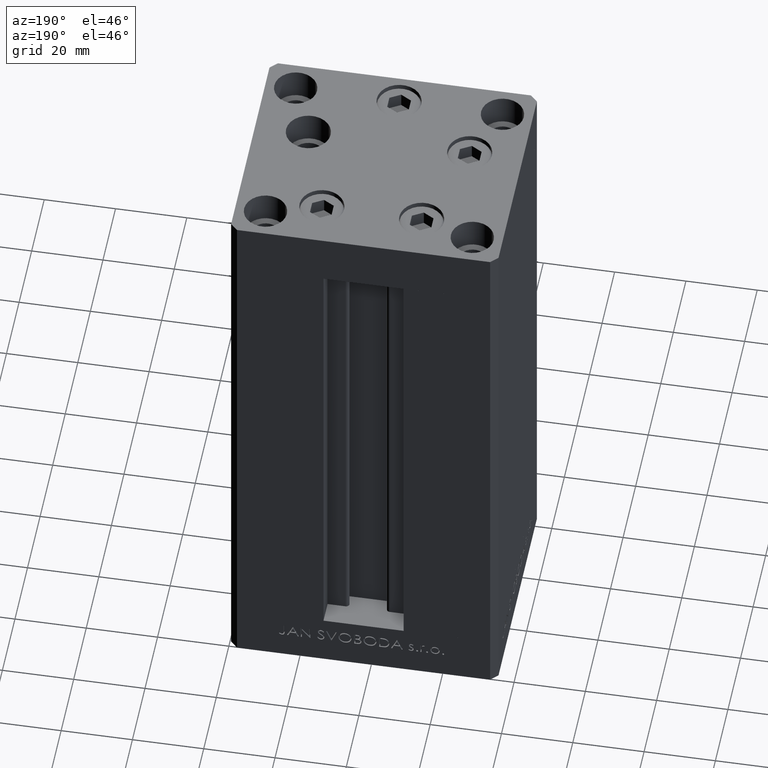
[diagram: clean part render]
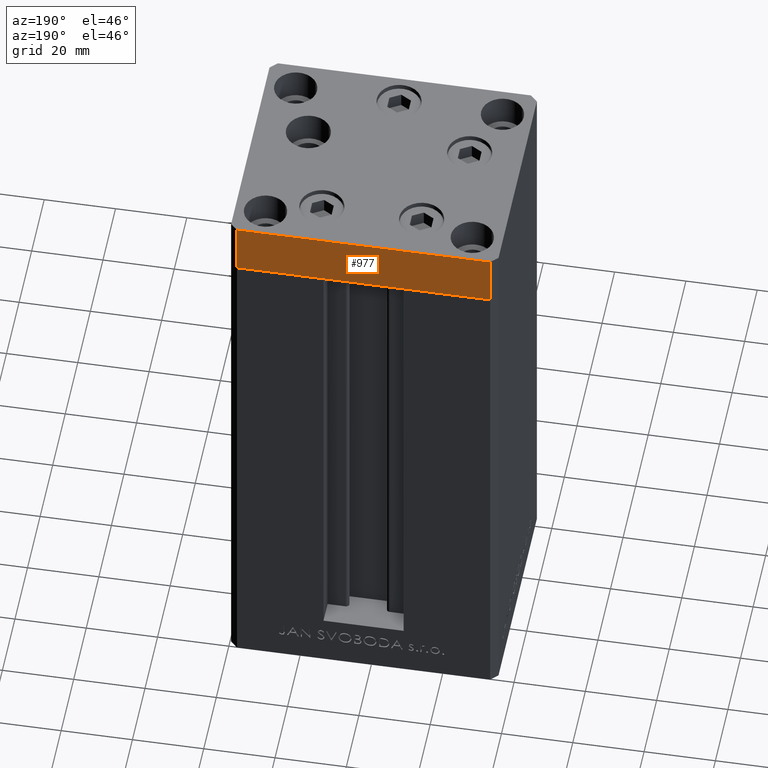
[diagram: same view with one face highlighted and labeled with its STEP entity id]
A machine part, auxiliary view. The second image highlights one B-rep face of the part: STEP entity #977.
In plain terms, the highlighted planar face has unit normal (-0, 1, 0).
Its self-contained STEP definition (entity closure, byte-faithful):
#977 = ADVANCED_FACE ( 'NONE', ( #18052 ), #48239, .T. ) ;
#1214 = DIRECTION ( 'NONE',  ( -1.000000000000000000, -1.954618001100629052E-16, 0.000000000000000000 ) ) ;
#1439 = EDGE_CURVE ( 'NONE', #19962, #36945, #45696, .T. ) ;
#2159 = EDGE_CURVE ( 'NONE', #24329, #37015, #3777, .T. ) ;
#3777 = LINE ( 'NONE', #30497, #27739 ) ;
#3970 = CARTESIAN_POINT ( 'NONE',  ( 35.49999999999992184, 32.50000000000000711, -15.00000000000000000 ) ) ;
#4616 = CARTESIAN_POINT ( 'NONE',  ( -35.50000000000002842, 32.49999999999999289, -15.00000000000000000 ) ) ;
#12446 = ORIENTED_EDGE ( 'NONE', *, *, #31937, .T. ) ;
#14650 = DIRECTION ( 'NONE',  ( 0.000000000000000000, 0.000000000000000000, 1.000000000000000000 ) ) ;
#18052 = FACE_OUTER_BOUND ( 'NONE', #21770, .T. ) ;
#19056 = DIRECTION ( 'NONE',  ( -1.000000000000000000, -1.954618001100629052E-16, 0.000000000000000000 ) ) ;
#19962 = VERTEX_POINT ( 'NONE', #34387 ) ;
#21770 = EDGE_LOOP ( 'NONE', ( #43813, #35745, #12446, #29218 ) ) ;
#23798 = AXIS2_PLACEMENT_3D ( 'NONE', #33650, #37358, #25983 ) ;
#24329 = VERTEX_POINT ( 'NONE', #40276 ) ;
#25983 = DIRECTION ( 'NONE',  ( -1.000000000000000000, -1.954618001100629052E-16, 0.000000000000000000 ) ) ;
#27739 = VECTOR ( 'NONE', #14650, 1000.000000000000000 ) ;
#29218 = ORIENTED_EDGE ( 'NONE', *, *, #1439, .T. ) ;
#30452 = LINE ( 'NONE', #3970, #48019 ) ;
#30497 = CARTESIAN_POINT ( 'NONE',  ( 35.49999999999992184, 32.50000000000000711, -15.00000000000000000 ) ) ;
#30903 = CARTESIAN_POINT ( 'NONE',  ( 35.49999999999992184, 32.50000000000000711, 0.000000000000000000 ) ) ;
#31937 = EDGE_CURVE ( 'NONE', #24329, #19962, #30452, .T. ) ;
#33360 = VECTOR ( 'NONE', #1214, 1000.000000000000000 ) ;
#33650 = CARTESIAN_POINT ( 'NONE',  ( 35.49999999999992184, 32.50000000000000711, -15.00000000000000000 ) ) ;
#34387 = CARTESIAN_POINT ( 'NONE',  ( -35.50000000000002842, 32.49999999999999289, -15.00000000000000000 ) ) ;
#35745 = ORIENTED_EDGE ( 'NONE', *, *, #2159, .F. ) ;
#36945 = VERTEX_POINT ( 'NONE', #47315 ) ;
#37015 = VERTEX_POINT ( 'NONE', #37424 ) ;
#37358 = DIRECTION ( 'NONE',  ( -1.954618001100629052E-16, 1.000000000000000000, 0.000000000000000000 ) ) ;
#37424 = CARTESIAN_POINT ( 'NONE',  ( 35.49999999999992184, 32.50000000000000711, 0.000000000000000000 ) ) ;
#38171 = EDGE_CURVE ( 'NONE', #37015, #36945, #38589, .T. ) ;
#38589 = LINE ( 'NONE', #30903, #33360 ) ;
#40276 = CARTESIAN_POINT ( 'NONE',  ( 35.49999999999992184, 32.50000000000000711, -15.00000000000000000 ) ) ;
#40371 = VECTOR ( 'NONE', #45202, 1000.000000000000000 ) ;
#43813 = ORIENTED_EDGE ( 'NONE', *, *, #38171, .F. ) ;
#45202 = DIRECTION ( 'NONE',  ( 0.000000000000000000, 0.000000000000000000, 1.000000000000000000 ) ) ;
#45696 = LINE ( 'NONE', #4616, #40371 ) ;
#47315 = CARTESIAN_POINT ( 'NONE',  ( -35.50000000000002842, 32.49999999999999289, 0.000000000000000000 ) ) ;
#48019 = VECTOR ( 'NONE', #19056, 1000.000000000000000 ) ;
#48239 = PLANE ( 'NONE',  #23798 ) ;